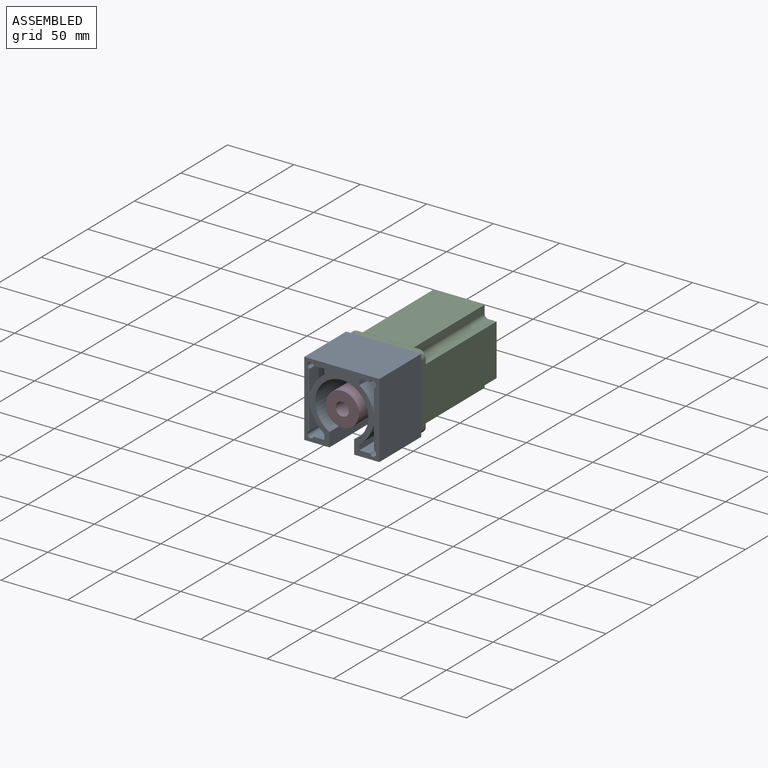
[diagram: assembled view]
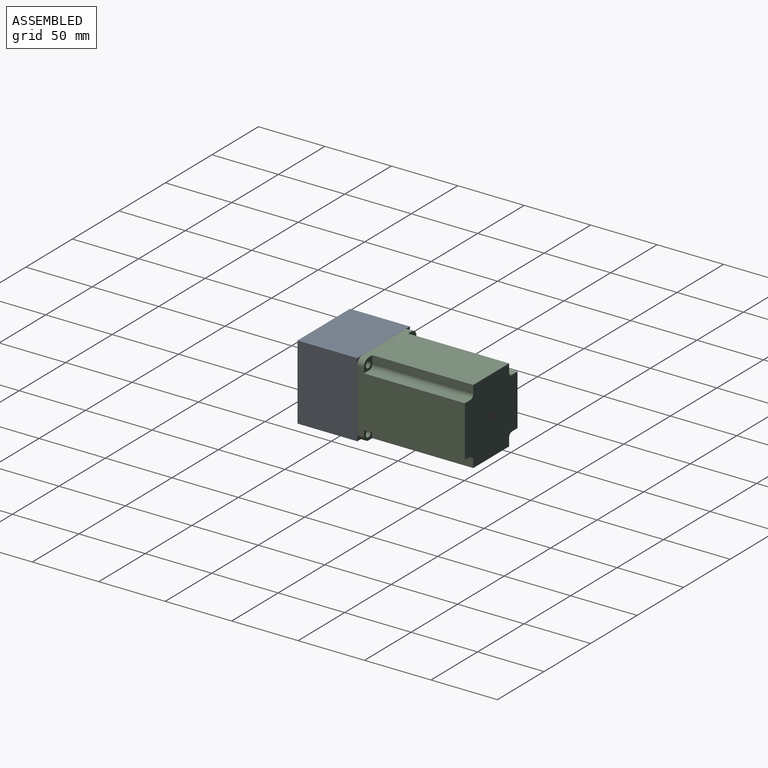
[diagram: assembled view, second angle]
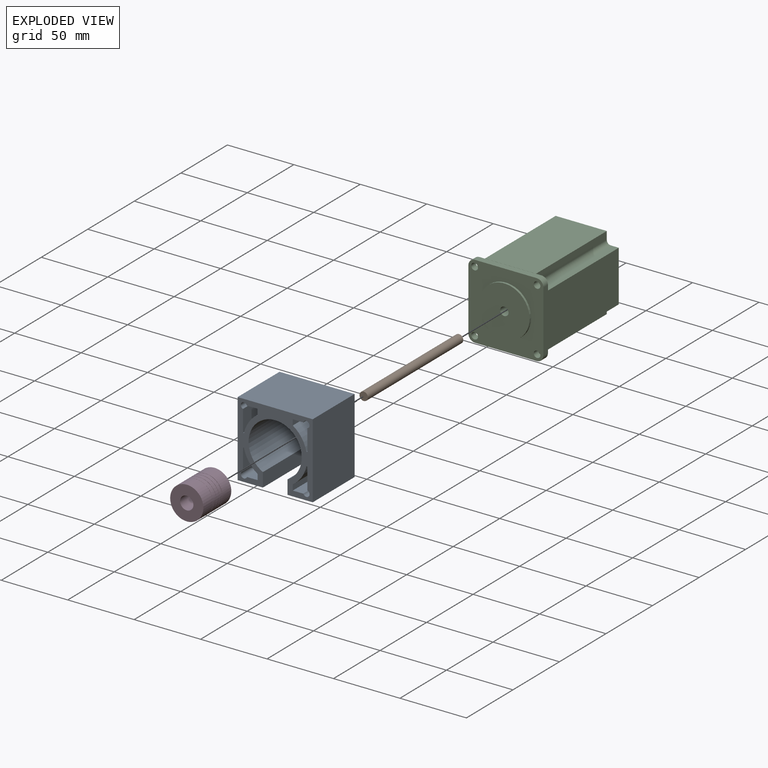
[diagram: exploded view]
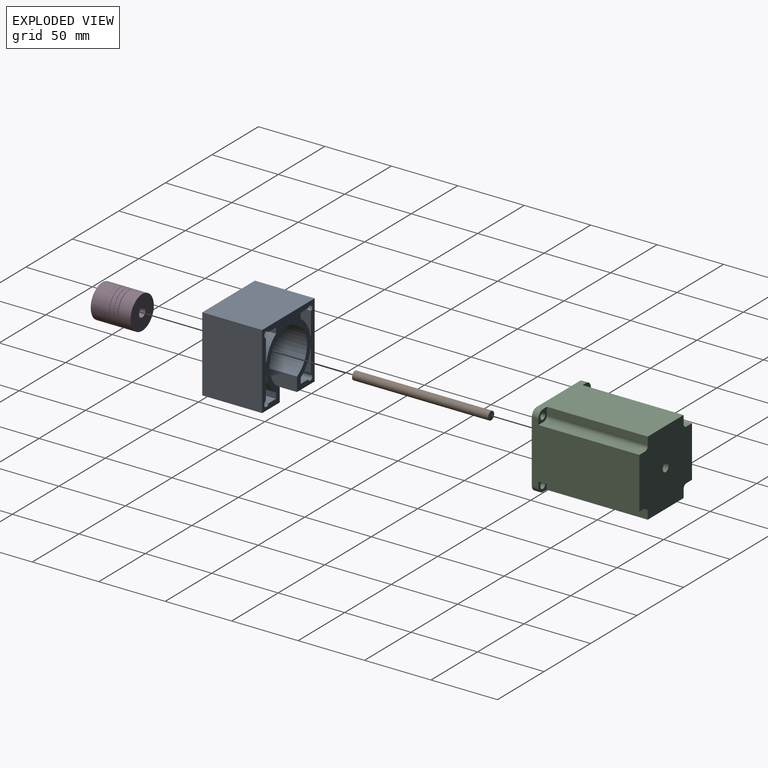
[diagram: exploded view, second angle]
ASSEMBLY  parts=4 mates=3
PART A: 34 faces, bbox 56.5x45x56.5 mm
  f0: plane 45x4.24mm, normal (-1,0,0), area 190.8mm2, adj f1,f31,f32,f33
  f1: cylinder r=24mm len=45mm, axis (0,1,0), area 838.2mm2, adj f0,f2,f32,f33
  f2: plane 45x0.78mm, normal (0,0,1), area 34.9mm2, adj f1,f3,f32,f33
  f3: plane 45x16.25mm, normal (1,0,0), area 731.1mm2, adj f2,f4,f32,f33
  f4: cylinder r=2.37mm len=45mm, axis (0,1,0), area 434.9mm2, adj f3,f31,f32,f33
  f5: plane 45x4.24mm, normal (1,0,0), area 190.8mm2, adj f6,f27,f32,f33
  f6: cylinder r=24mm len=45mm, axis (0,1,0), area 838.2mm2, adj f5,f7,f32,f33
  f7: plane 45x0.78mm, normal (0,0,-1), area 34.9mm2, adj f6,f8,f32,f33
  f8: plane 45x16.25mm, normal (-1,0,0), area 731.1mm2, adj f7,f9,f32,f33
  f9: cylinder r=2.37mm len=45mm, axis (0,1,0), area 434.9mm2, adj f8,f27,f32,f33
  f10: plane 45x10.52mm, normal (1,0,0), area 473.3mm2, adj f11,f28,f32,f33
  f11: cylinder r=20mm len=45mm, axis (0,1,0), area 4789.4mm2, adj f10,f12,f32,f33
  f12: plane 45x10.52mm, normal (-1,0,0), area 473.3mm2, adj f11,f13,f32,f33
  f13: plane 45x19mm, normal (0,0,-1), area 855mm2, adj f12,f14,f32,f33
  f14: plane 56.5x45mm, normal (1,0,0), area 2542.5mm2, adj f13,f15,f32,f33
  f15: plane 56.5x45mm, normal (0,0,1), area 2542.5mm2, adj f14,f16,f32,f33
  f16: plane 56.5x45mm, normal (-1,0,0), area 2542.5mm2, adj f15,f28,f32,f33
  f17: plane 45x4.24mm, normal (-1,0,0), area 190.8mm2, adj f18,f29,f32,f33
  f18: plane 45x8mm, normal (0,0,1), area 359.9mm2, adj f17,f19,f32,f33
  f19: cylinder r=2.37mm len=45mm, axis (0,1,0), area 434.9mm2, adj f18,f20,f32,f33
  f20: plane 45x16.25mm, normal (1,0,0), area 731.1mm2, adj f19,f21,f32,f33
  f21: plane 45x0.78mm, normal (0,0,-1), area 34.9mm2, adj f20,f29,f32,f33
  f22: cylinder r=2.37mm len=45mm, axis (0,1,0), area 434.9mm2, adj f23,f30,f32,f33
  f23: plane 45x16.25mm, normal (-1,0,0), area 731.1mm2, adj f22,f24,f32,f33
  f24: plane 45x0.78mm, normal (0,0,1), area 34.9mm2, adj f23,f25,f32,f33
  f25: cylinder r=24mm len=45mm, axis (0,1,0), area 838.2mm2, adj f24,f26,f32,f33
  f26: plane 45x4.24mm, normal (1,0,0), area 190.8mm2, adj f25,f30,f32,f33
  f27: plane 45x8mm, normal (0,0,1), area 359.9mm2, adj f5,f9,f32,f33
  f28: plane 45x19mm, normal (0,0,-1), area 855mm2, adj f10,f16,f32,f33
  f29: cylinder r=24mm len=45mm, axis (0,1,0), area 838.2mm2, adj f17,f21,f32,f33
  f30: plane 45x8mm, normal (0,0,-1), area 359.9mm2, adj f22,f26,f32,f33
  f31: plane 45x8mm, normal (0,0,-1), area 359.9mm2, adj f0,f4,f32,f33
  f32: plane 56.5x56.5mm, normal (0,-1,0), area 1279.5mm2, adj f0,f1,f2,f3,f4,f5,f6,f7
  f33: plane 56.5x56.5mm, normal (0,1,0), area 1279.5mm2, adj f0,f1,f2,f3,f4,f5,f6,f7
PART B: 3 faces, bbox 6.4x102.5x6.4 mm
  f0: cylinder r=3.17mm len=102.5mm, axis (0,1,0), area 2044.8mm2, adj f1,f2
  f1: plane 6.35x6.35mm, normal (0,-1,0), area 31.7mm2, adj f0
  f2: plane 6.35x6.35mm, normal (0,1,0), area 31.7mm2, adj f0
PART C: 41 faces, bbox 56.5x82.6x56.5 mm
  f0: plane 8.95x8.95mm, normal (0,1,0), area 53.2mm2, adj f6,f7,f8,f11,f25,f26,f27
  f1: plane 8.95x8.95mm, normal (0,1,0), area 53.2mm2, adj f3,f4,f12,f14,f33,f34,f35
  f2: plane 8.95x8.95mm, normal (0,1,0), area 53.2mm2, adj f8,f9,f10,f14,f29,f30,f31
  f3: cylinder r=5mm len=5mm, axis (0,1,0), area 39.3mm2, adj f1,f4,f14,f15
  f4: plane 46.4x5mm, normal (0,0,-1), area 232mm2, adj f1,f3,f5,f15,f16,f22
  f5: cylinder r=5mm len=5mm, axis (0,1,0), area 39.3mm2, adj f4,f6,f15,f16
  f6: plane 46.4x5mm, normal (1,0,0), area 232mm2, adj f0,f5,f7,f15,f16,f40
  f7: cylinder r=5mm len=5mm, axis (0,1,0), area 39.3mm2, adj f0,f6,f8,f15
  f8: plane 46.4x5mm, normal (0,0,1), area 232mm2, adj f0,f2,f7,f9,f15,f21
  f9: cylinder r=5mm len=5mm, axis (0,1,0), area 39.3mm2, adj f2,f8,f14,f15
  f10: cylinder r=2.5mm len=5mm, axis (0,1,0), area 78.5mm2, adj f2,f15
  f11: cylinder r=2.5mm len=5mm, axis (0,1,0), area 78.5mm2, adj f0,f15
  f12: cylinder r=2.5mm len=5mm, axis (0,1,0), area 78.5mm2, adj f1,f15
  f13: cylinder r=2.5mm len=5mm, axis (0,1,0), area 78.5mm2, adj f15,f16
  f14: plane 46.4x5mm, normal (-1,0,0), area 232mm2, adj f1,f2,f3,f9,f15,f20
  f15: plane 56.4x56.4mm, normal (0,-1,0), area 1946.8mm2, adj f3,f4,f5,f6,f7,f8,f9,f10
  f16: plane 8.95x8.95mm, normal (0,1,0), area 53.2mm2, adj f4,f5,f6,f13,f23,f37,f38
  f17: cylinder r=19mm len=38mm, axis (0,1,0), area 191mm2, adj f15,f19
  f18: cylinder r=3.17mm len=82.6mm, axis (0,1,0), area 1647.8mm2, adj f19,f39
  f19: plane 38x38mm, normal (0,-1,0), area 1102.4mm2, adj f17,f18
  f20: plane 38.5x0.05mm, normal (0,-1,0), area 1.9mm2, adj f14,f31,f32,f33
  f21: plane 38.5x0.05mm, normal (0,-1,0), area 1.9mm2, adj f8,f27,f28,f29
  f22: plane 38.5x0.05mm, normal (0,-1,0), area 1.9mm2, adj f4,f35,f36,f37
  f23: plane 76x6mm, normal (0,0,-1), area 456mm2, adj f16,f24,f38,f39,f40
  f24: plane 76x38.5mm, normal (1,0,0), area 2926mm2, adj f23,f25,f39,f40
  f25: plane 76x6mm, normal (0,0,1), area 456mm2, adj f0,f24,f26,f39,f40
  f26: cylinder r=3mm len=76mm, axis (0,-1,0), area 358.1mm2, adj f0,f25,f27,f39
  f27: plane 76x6mm, normal (1,0,0), area 456mm2, adj f0,f21,f26,f28,f39
  f28: plane 76x38.5mm, normal (0,0,1), area 2926mm2, adj f21,f27,f29,f39
  f29: plane 76x6mm, normal (-1,0,0), area 456mm2, adj f2,f21,f28,f30,f39
  f30: cylinder r=3mm len=76mm, axis (0,-1,0), area 358.1mm2, adj f2,f29,f31,f39
  f31: plane 76x6mm, normal (0,0,1), area 456mm2, adj f2,f20,f30,f32,f39
  f32: plane 76x38.5mm, normal (-1,0,0), area 2926mm2, adj f20,f31,f33,f39
  f33: plane 76x6mm, normal (0,0,-1), area 456mm2, adj f1,f20,f32,f34,f39
  f34: cylinder r=3mm len=76mm, axis (0,-1,0), area 358.1mm2, adj f1,f33,f35,f39
  f35: plane 76x6mm, normal (-1,0,0), area 456mm2, adj f1,f22,f34,f36,f39
  f36: plane 76x38.5mm, normal (0,0,-1), area 2926mm2, adj f22,f35,f37,f39
  f37: plane 76x6mm, normal (1,0,0), area 456mm2, adj f16,f22,f36,f38,f39
  f38: cylinder r=3mm len=76mm, axis (0,-1,0), area 358.1mm2, adj f16,f23,f37,f39
  f39: plane 56.5x56.5mm, normal (0,1,0), area 2844.3mm2, adj f18,f23,f24,f25,f26,f27,f28,f29
  f40: plane 38.5x0.05mm, normal (0,-1,0), area 1.9mm2, adj f6,f23,f24,f25
PART D: 23 faces, bbox 30x28.9x25 mm
  f0: cylinder r=12.4mm len=24.8mm, axis (1,0,0), area 7.3mm2, adj f4,f5,f18,f19
  f1: plane 10x9.99mm, normal (-1,0,0), area 39.8mm2, adj f15,f16,f17,f18,f19,f22
  f2: plane 25x25mm, normal (1,0,0), area 454.6mm2, adj f3,f17
  f3: cylinder r=12.5mm len=25mm, axis (1,0,0), area 782.3mm2, adj f2,f4,f18,f19,f21
  f4: plane 25x25mm, normal (-1,0,0), area 7.3mm2, adj f0,f3,f18,f19
  f5: plane 25x24.98mm, normal (1,0,0), area 7.4mm2, adj f0,f8,f9,f18,f19
  f6: cylinder r=12.5mm len=25mm, axis (1,0,0), area 299.5mm2, adj f7,f10,f18,f19,f20
  f7: cylinder r=12.5mm len=25mm, axis (1,0,0), area 240.8mm2, adj f6,f8,f18,f19
  f8: cylinder r=12.5mm len=25mm, axis (1,0,0), area 178.4mm2, adj f5,f7,f9,f18,f19
  f9: cylinder r=12.5mm len=12.48mm, axis (1,0,0), area 7.5mm2, adj f5,f8,f18
  f10: plane 25x25mm, normal (-1,0,0), area 7.8mm2, adj f6,f11
  f11: cylinder r=12.4mm len=24.8mm, axis (1,0,0), area 7.8mm2, adj f10,f12
  f12: plane 25x25mm, normal (1,0,0), area 7.8mm2, adj f11,f13
  f13: cylinder r=12.5mm len=25mm, axis (1,0,0), area 785.4mm2, adj f12,f14
  f14: plane 25x25mm, normal (-1,0,0), area 412.3mm2, adj f13,f16
  f15: cylinder r=5mm len=10mm, axis (1,0,0), area 28.2mm2, adj f1,f16,f18
  f16: cylinder r=5mm len=15mm, axis (1,0,0), area 435.2mm2, adj f1,f14,f15,f18,f19,f20
  f17: cylinder r=3.4mm len=15mm, axis (1,0,0), area 320.4mm2, adj f1,f2
  f18: bspline ~28.87x25mm, area 1312.3mm2, adj f0,f1,f3,f4,f5,f6,f7,f8
  f19: bspline ~28.87x25mm, area 1309.7mm2, adj f0,f1,f3,f4,f5,f6,f7,f8
  f20: plane 7.5x0.2mm, normal (0,-1,0), area 1.5mm2, adj f6,f16,f18,f19
  f21: plane 9.05x0.2mm, normal (0,1,0), area 1.8mm2, adj f3,f18,f19,f22
  f22: cylinder r=3.45mm len=6.89mm, axis (1,0,0), area 7.5mm2, adj f1,f18,f19,f21
PLACE A t=(-697.21,165.86,-113.93)mm
PLACE B t=(-456.82,246.86,-115.68)mm
PLACE C t=(-533.4,170.86,-115.68)mm
PLACE D rot(axis=(0.58,0.58,0.58),120deg) t=(-589.37,95.43,-115.68)mm
MATE fastened C.f11 <-> A.f22  axis (0,-1,0) through (-509.9,165.86,-92.18)mm
MATE fastened D.f0 <-> B.f0  axis (0,1,0) through (-533.4,151.36,-115.68)mm
MATE revolute B.f0 <-> C.f17  axis (0,1,0) through (-533.4,246.86,-115.68)mm
